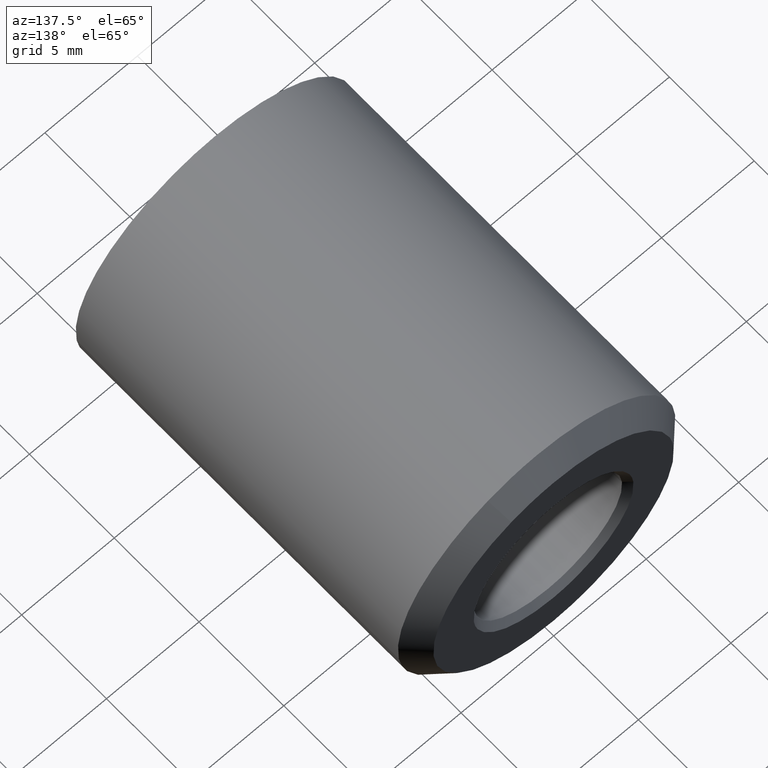
[diagram: clean part render]
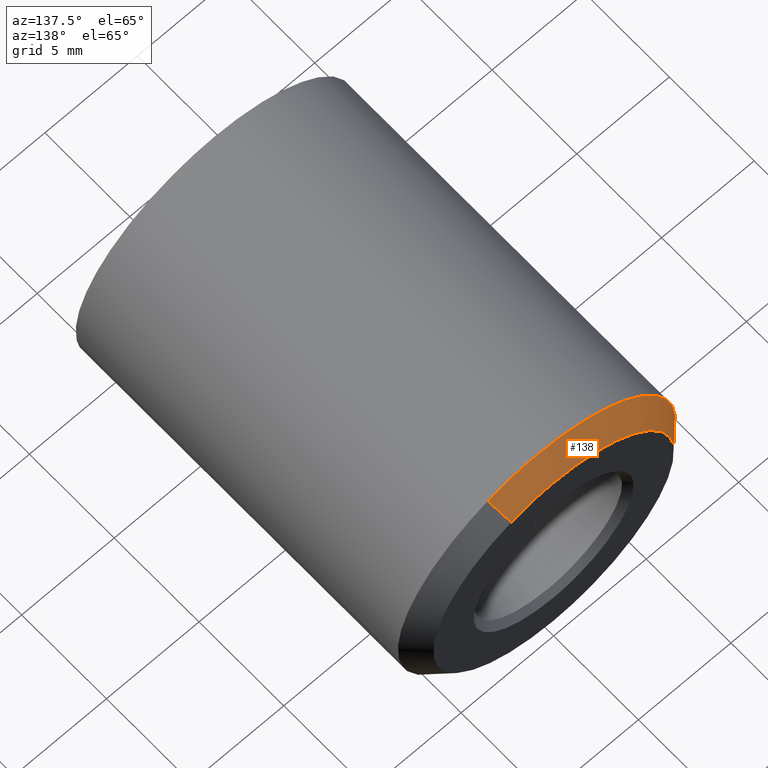
[diagram: same view with one face highlighted and labeled with its STEP entity id]
A machine part, auxiliary view. The second image highlights one B-rep face of the part: STEP entity #138.
In plain terms, the highlighted face is a freeform B-spline surface patch.
Its self-contained STEP definition (entity closure, byte-faithful):
#44=CARTESIAN_POINT('',(2.276726384185428,20.025000000000006,6.061529672578851));
#45=CARTESIAN_POINT('',(1.366156699857268,20.025000000000009,6.403542025389346));
#46=CARTESIAN_POINT('',(0.395289293488199,20.024999999999999,6.462922819781583));
#47=CARTESIAN_POINT('',(-6.067633526293384,20.025000000000009,6.858212113269781));
#48=CARTESIAN_POINT('',(-6.462922819781583,20.024999999999999,0.395289293488199));
#49=CARTESIAN_POINT('',(2.646145018530576,18.974374999999991,7.045065520031083));
#50=CARTESIAN_POINT('',(1.587827492565770,18.974374999999998,7.442572348234865));
#51=CARTESIAN_POINT('',(0.459428415337008,18.974374999999998,7.511588192373565));
#52=CARTESIAN_POINT('',(-7.052159777036557,18.974375000000002,7.971016607710572));
#53=CARTESIAN_POINT('',(-7.511588192373565,18.974374999999998,0.459428415337008));
#61=(BOUNDED_SURFACE()B_SPLINE_SURFACE(2,1,((#44,#49),(#45,#50),(#46,#51),(#47,#52),(#48,#53)),.UNSPECIFIED.,.F.,.F.,.U.)B_SPLINE_SURFACE_WITH_KNOTS((3,2,3),(2,2),(0.0,2.493772752267220,14.962636513603320),(0.0,1.0),.UNSPECIFIED.)GEOMETRIC_REPRESENTATION_ITEM()RATIONAL_B_SPLINE_SURFACE(((0.906274169979695,0.906274169979695),(0.941421356237309,0.941421356237309),(1.0,1.0),(0.707106781186548,0.707106781186548),(1.0,1.0)))REPRESENTATION_ITEM('')SURFACE());
#62=CARTESIAN_POINT('',(2.637134807943279,18.999999999999371,7.021076840823168));
#63=VERTEX_POINT('',#62);
#64=CARTESIAN_POINT('',(0.0,19.0,7.500000000000000));
#65=VERTEX_POINT('',#64);
#66=CARTESIAN_POINT('',(2.637134807943280,18.999999999999368,7.021076840823168));
#67=CARTESIAN_POINT('',(1.362055395507618,19.0,7.500000000000000));
#68=CARTESIAN_POINT('',(0.0,19.0,7.500000000000000));
#76=(BOUNDED_CURVE()B_SPLINE_CURVE(2,(#66,#67,#68),.UNSPECIFIED.,.F.,.U.)B_SPLINE_CURVE_WITH_KNOTS((3,3),(0.440284170898627,0.500000000000000),.UNSPECIFIED.)CURVE()GEOMETRIC_REPRESENTATION_ITEM()RATIONAL_B_SPLINE_CURVE((0.893499554635421,0.930038554401540,1.0))REPRESENTATION_ITEM(''));
#77=EDGE_CURVE('',#63,#65,#76,.T.);
#78=ORIENTED_EDGE('',*,*,#77,.F.);
#79=CARTESIAN_POINT('',(2.285516833559040,19.999999999998650,6.084933262044523));
#80=VERTEX_POINT('',#79);
#81=CARTESIAN_POINT('',(2.285516833559040,19.999999999998650,6.084933262044523));
#82=CARTESIAN_POINT('',(2.637134807943279,18.999999999999371,7.021076840823168));
#83=QUASI_UNIFORM_CURVE('',1,(#81,#82),.UNSPECIFIED.,.F.,.U.);
#84=EDGE_CURVE('',#80,#63,#83,.T.);
#85=ORIENTED_EDGE('',*,*,#84,.F.);
#86=CARTESIAN_POINT('',(0.0,20.0,6.500000000000000));
#87=VERTEX_POINT('',#86);
#88=CARTESIAN_POINT('',(2.285516833559040,19.999999999998646,6.084933262044523));
#89=CARTESIAN_POINT('',(1.180448009448671,20.0,6.500000000000001));
#90=CARTESIAN_POINT('',(0.0,20.0,6.500000000000000));
#98=(BOUNDED_CURVE()B_SPLINE_CURVE(2,(#88,#89,#90),.UNSPECIFIED.,.F.,.U.)B_SPLINE_CURVE_WITH_KNOTS((3,3),(0.440284170898217,0.500000000000000),.UNSPECIFIED.)CURVE()GEOMETRIC_REPRESENTATION_ITEM()RATIONAL_B_SPLINE_CURVE((0.893499554634918,0.930038554401058,1.0))REPRESENTATION_ITEM(''));
#99=EDGE_CURVE('',#80,#87,#98,.T.);
#100=ORIENTED_EDGE('',*,*,#99,.T.);
#101=CARTESIAN_POINT('',(-6.487876189743154,19.999999999998099,0.396815506990952));
#102=VERTEX_POINT('',#101);
#103=CARTESIAN_POINT('',(0.0,20.0,6.500000000000000));
#104=CARTESIAN_POINT('',(-6.114589434860092,19.999999999999996,6.500000000000000));
#105=CARTESIAN_POINT('',(-6.487876189743154,19.999999999998103,0.396815506990952));
#113=(BOUNDED_CURVE()B_SPLINE_CURVE(2,(#103,#104,#105),.UNSPECIFIED.,.F.,.U.)B_SPLINE_CURVE_WITH_KNOTS((3,3),(0.500000000000000,0.739332962241210),.UNSPECIFIED.)CURVE()GEOMETRIC_REPRESENTATION_ITEM()RATIONAL_B_SPLINE_CURVE((1.0,0.719603993284054,0.976072041671576))REPRESENTATION_ITEM(''));
#114=EDGE_CURVE('',#87,#102,#113,.T.);
#115=ORIENTED_EDGE('',*,*,#114,.T.);
#116=CARTESIAN_POINT('',(-7.486011170110235,19.000000004526569,0.457860997528976));
#117=VERTEX_POINT('',#116);
#118=CARTESIAN_POINT('',(-6.487876189743154,19.999999999998099,0.396815506990952));
#119=CARTESIAN_POINT('',(-7.486011170110235,19.000000004526569,0.457860997528976));
#120=QUASI_UNIFORM_CURVE('',1,(#118,#119),.UNSPECIFIED.,.F.,.U.);
#121=EDGE_CURVE('',#102,#117,#120,.T.);
#122=ORIENTED_EDGE('',*,*,#121,.T.);
#123=CARTESIAN_POINT('',(0.0,19.0,7.500000000000000));
#124=CARTESIAN_POINT('',(-7.055298380458022,18.999999999999996,7.499999999999999));
#125=CARTESIAN_POINT('',(-7.486011170110235,19.000000004526569,0.457860997528976));
#133=(BOUNDED_CURVE()B_SPLINE_CURVE(2,(#123,#124,#125),.UNSPECIFIED.,.F.,.U.)B_SPLINE_CURVE_WITH_KNOTS((3,3),(0.500000000000000,0.739333032512299),.UNSPECIFIED.)CURVE()GEOMETRIC_REPRESENTATION_ITEM()RATIONAL_B_SPLINE_CURVE((1.0,0.719603910956352,0.976072192275943))REPRESENTATION_ITEM(''));
#134=EDGE_CURVE('',#65,#117,#133,.T.);
#135=ORIENTED_EDGE('',*,*,#134,.F.);
#136=EDGE_LOOP('',(#78,#85,#100,#115,#122,#135));
#137=FACE_OUTER_BOUND('',#136,.T.);
#138=ADVANCED_FACE('',(#137),#61,.T.);